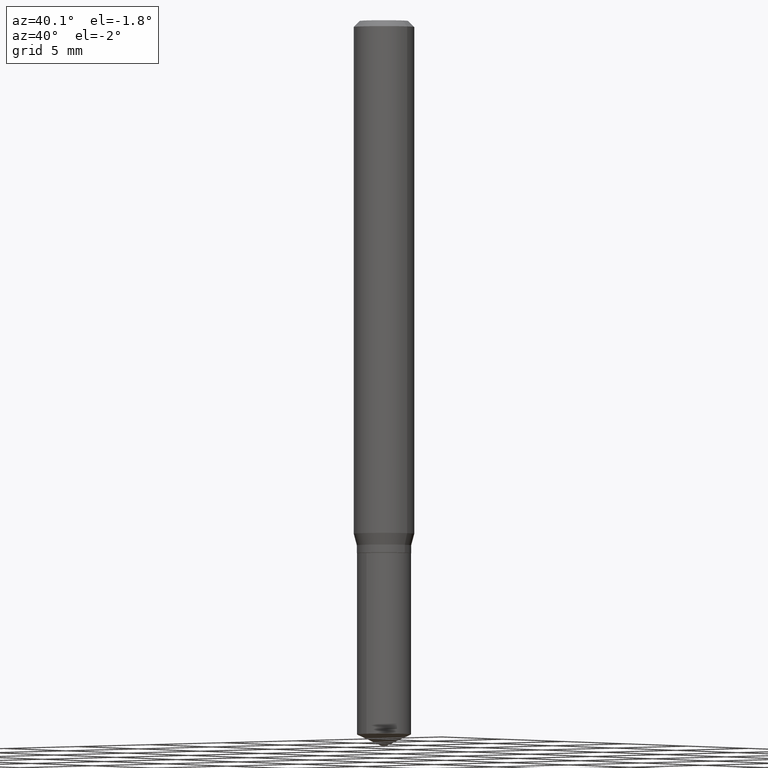
[diagram: clean part render]
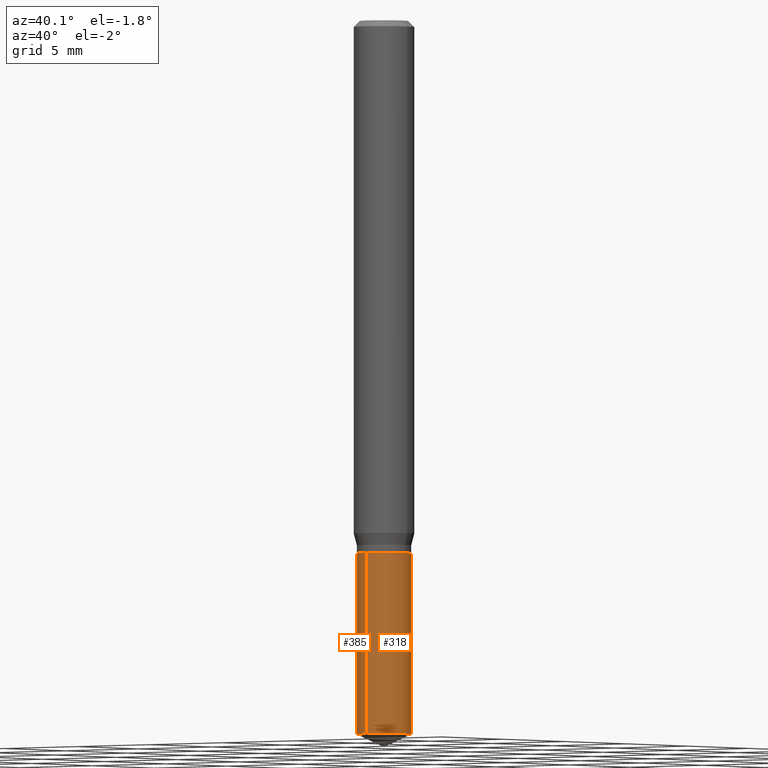
[diagram: same view with one multi-face feature highlighted, each face labeled with its STEP entity id]
A machine part, auxiliary view. The highlighted faces form ONE feature: a constant-radius fillet chain: 2 tangent blend faces with common blend radius 1.4249 mm. The faces share edges in the B-rep.
Their STEP definitions:
[1] entity #318 (Cylinder):
#3 = VERTEX_POINT ( 'NONE', #359 ) ;
#4 = EDGE_CURVE ( 'NONE', #3, #78, #45, .T. ) ;
#17 = CARTESIAN_POINT ( 'NONE',  ( 3.986144747614522247E-16, 0.05609999999999615988, -1.100000000000000089 ) ) ;
#27 = FACE_OUTER_BOUND ( 'NONE', #447, .T. ) ;
#29 = VERTEX_POINT ( 'NONE', #132 ) ;
#45 = LINE ( 'NONE', #134, #394 ) ;
#52 = AXIS2_PLACEMENT_3D ( 'NONE', #76, #302, #240 ) ;
#76 = CARTESIAN_POINT ( 'NONE',  ( 2.690015686803650369E-29, -3.840629472727460101E-15, -1.100000000000000089 ) ) ;
#78 = VERTEX_POINT ( 'NONE', #17 ) ;
#79 = CARTESIAN_POINT ( 'NONE',  ( -3.917442062181726311E-16, -0.05610000000000384124, -1.099999999999999867 ) ) ;
#82 = AXIS2_PLACEMENT_3D ( 'NONE', #293, #400, #434 ) ;
#116 = ORIENTED_EDGE ( 'NONE', *, *, #4, .T. ) ;
#127 = EDGE_CURVE ( 'NONE', #356, #78, #298, .T. ) ;
#132 = CARTESIAN_POINT ( 'NONE',  ( -3.917442062181634113E-16, -0.05610000000000514575, -1.473840140377504326 ) ) ;
#134 = CARTESIAN_POINT ( 'NONE',  ( 3.986144747614430049E-16, 0.05609999999999615988, -1.100000000000000089 ) ) ;
#147 = DIRECTION ( 'NONE',  ( -2.445399690415121530E-29, 3.491580316559632610E-15, 1.000000000000000000 ) ) ;
#148 = DIRECTION ( 'NONE',  ( -2.445399690415121810E-29, 3.491580316559632610E-15, 1.000000000000000000 ) ) ;
#182 = EDGE_CURVE ( 'NONE', #29, #3, #275, .T. ) ;
#188 = CARTESIAN_POINT ( 'NONE',  ( 3.604204250347545418E-29, -5.145922348409444387E-15, -1.473840140377504548 ) ) ;
#207 = DIRECTION ( 'NONE',  ( -2.445399690415121810E-29, 3.491580316559632610E-15, 1.000000000000000000 ) ) ;
#240 = DIRECTION ( 'NONE',  ( -6.982962677686265133E-15, -1.000000000000000000, 2.434802133390608632E-15 ) ) ;
#245 = ORIENTED_EDGE ( 'NONE', *, *, #127, .F. ) ;
#275 = CIRCLE ( 'NONE', #323, 0.05610000000000000403 ) ;
#282 = EDGE_CURVE ( 'NONE', #29, #356, #346, .T. ) ;
#293 = CARTESIAN_POINT ( 'NONE',  ( 2.690015686803650369E-29, -3.840629472727460101E-15, -1.100000000000000089 ) ) ;
#298 = CIRCLE ( 'NONE', #82, 0.05610000000000000403 ) ;
#299 = DIRECTION ( 'NONE',  ( -6.982962677686265133E-15, -1.000000000000000000, 4.869604266781217263E-15 ) ) ;
#302 = DIRECTION ( 'NONE',  ( -2.445399690415121530E-29, 3.491580316559632610E-15, 1.000000000000000000 ) ) ;
#318 = ADVANCED_FACE ( 'NONE', ( #27 ), #342, .T. ) ;
#323 = AXIS2_PLACEMENT_3D ( 'NONE', #188, #147, #299 ) ;
#342 = CYLINDRICAL_SURFACE ( 'NONE', #52, 0.05610000000000000403 ) ;
#346 = LINE ( 'NONE', #479, #347 ) ;
#347 = VECTOR ( 'NONE', #148, 39.37007874015748143 ) ;
#350 = ORIENTED_EDGE ( 'NONE', *, *, #282, .F. ) ;
#356 = VERTEX_POINT ( 'NONE', #79 ) ;
#359 = CARTESIAN_POINT ( 'NONE',  ( 3.986144747614521754E-16, 0.05609999999999484149, -1.473840140377504770 ) ) ;
#380 = ORIENTED_EDGE ( 'NONE', *, *, #182, .T. ) ;
#394 = VECTOR ( 'NONE', #207, 39.37007874015748143 ) ;
#400 = DIRECTION ( 'NONE',  ( -2.445399690415121530E-29, 3.491580316559632610E-15, 1.000000000000000000 ) ) ;
#434 = DIRECTION ( 'NONE',  ( -6.982962677686265133E-15, -1.000000000000000000, 2.434802133390608632E-15 ) ) ;
#447 = EDGE_LOOP ( 'NONE', ( #380, #116, #245, #350 ) ) ;
#479 = CARTESIAN_POINT ( 'NONE',  ( -3.917442062181726311E-16, -0.05610000000000384124, -1.099999999999999867 ) ) ;
[2] entity #385 (Cylinder):
#3 = VERTEX_POINT ( 'NONE', #359 ) ;
#4 = EDGE_CURVE ( 'NONE', #3, #78, #45, .T. ) ;
#17 = CARTESIAN_POINT ( 'NONE',  ( 3.986144747614522247E-16, 0.05609999999999615988, -1.100000000000000089 ) ) ;
#20 = FACE_OUTER_BOUND ( 'NONE', #33, .T. ) ;
#29 = VERTEX_POINT ( 'NONE', #132 ) ;
#33 = EDGE_LOOP ( 'NONE', ( #159, #130, #209, #378 ) ) ;
#45 = LINE ( 'NONE', #134, #394 ) ;
#63 = CARTESIAN_POINT ( 'NONE',  ( 2.690015686803650369E-29, -3.840629472727460101E-15, -1.100000000000000089 ) ) ;
#78 = VERTEX_POINT ( 'NONE', #17 ) ;
#79 = CARTESIAN_POINT ( 'NONE',  ( -3.917442062181726311E-16, -0.05610000000000384124, -1.099999999999999867 ) ) ;
#89 = EDGE_CURVE ( 'NONE', #78, #356, #162, .T. ) ;
#130 = ORIENTED_EDGE ( 'NONE', *, *, #312, .T. ) ;
#132 = CARTESIAN_POINT ( 'NONE',  ( -3.917442062181634113E-16, -0.05610000000000514575, -1.473840140377504326 ) ) ;
#134 = CARTESIAN_POINT ( 'NONE',  ( 3.986144747614430049E-16, 0.05609999999999615988, -1.100000000000000089 ) ) ;
#143 = CYLINDRICAL_SURFACE ( 'NONE', #369, 0.05610000000000000403 ) ;
#145 = CARTESIAN_POINT ( 'NONE',  ( 2.690015686803650369E-29, -3.840629472727460101E-15, -1.100000000000000089 ) ) ;
#148 = DIRECTION ( 'NONE',  ( -2.445399690415121810E-29, 3.491580316559632610E-15, 1.000000000000000000 ) ) ;
#159 = ORIENTED_EDGE ( 'NONE', *, *, #4, .F. ) ;
#162 = CIRCLE ( 'NONE', #180, 0.05610000000000000403 ) ;
#180 = AXIS2_PLACEMENT_3D ( 'NONE', #63, #183, #291 ) ;
#183 = DIRECTION ( 'NONE',  ( -2.445399690415121530E-29, 3.491580316559632610E-15, 1.000000000000000000 ) ) ;
#201 = AXIS2_PLACEMENT_3D ( 'NONE', #483, #412, #306 ) ;
#207 = DIRECTION ( 'NONE',  ( -2.445399690415121810E-29, 3.491580316559632610E-15, 1.000000000000000000 ) ) ;
#209 = ORIENTED_EDGE ( 'NONE', *, *, #282, .T. ) ;
#261 = DIRECTION ( 'NONE',  ( -6.982962677686265133E-15, -1.000000000000000000, 2.434802133390608632E-15 ) ) ;
#282 = EDGE_CURVE ( 'NONE', #29, #356, #346, .T. ) ;
#291 = DIRECTION ( 'NONE',  ( -6.982962677686265133E-15, -1.000000000000000000, 2.434802133390608632E-15 ) ) ;
#294 = DIRECTION ( 'NONE',  ( -2.445399690415121530E-29, 3.491580316559632610E-15, 1.000000000000000000 ) ) ;
#306 = DIRECTION ( 'NONE',  ( -6.982962677686265133E-15, -1.000000000000000000, 4.869604266781217263E-15 ) ) ;
#312 = EDGE_CURVE ( 'NONE', #3, #29, #349, .T. ) ;
#346 = LINE ( 'NONE', #479, #347 ) ;
#347 = VECTOR ( 'NONE', #148, 39.37007874015748143 ) ;
#349 = CIRCLE ( 'NONE', #201, 0.05610000000000000403 ) ;
#356 = VERTEX_POINT ( 'NONE', #79 ) ;
#359 = CARTESIAN_POINT ( 'NONE',  ( 3.986144747614521754E-16, 0.05609999999999484149, -1.473840140377504770 ) ) ;
#369 = AXIS2_PLACEMENT_3D ( 'NONE', #145, #294, #261 ) ;
#378 = ORIENTED_EDGE ( 'NONE', *, *, #89, .F. ) ;
#385 = ADVANCED_FACE ( 'NONE', ( #20 ), #143, .T. ) ;
#394 = VECTOR ( 'NONE', #207, 39.37007874015748143 ) ;
#412 = DIRECTION ( 'NONE',  ( -2.445399690415121530E-29, 3.491580316559632610E-15, 1.000000000000000000 ) ) ;
#479 = CARTESIAN_POINT ( 'NONE',  ( -3.917442062181726311E-16, -0.05610000000000384124, -1.099999999999999867 ) ) ;
#483 = CARTESIAN_POINT ( 'NONE',  ( 3.604204250347545418E-29, -5.145922348409444387E-15, -1.473840140377504548 ) ) ;